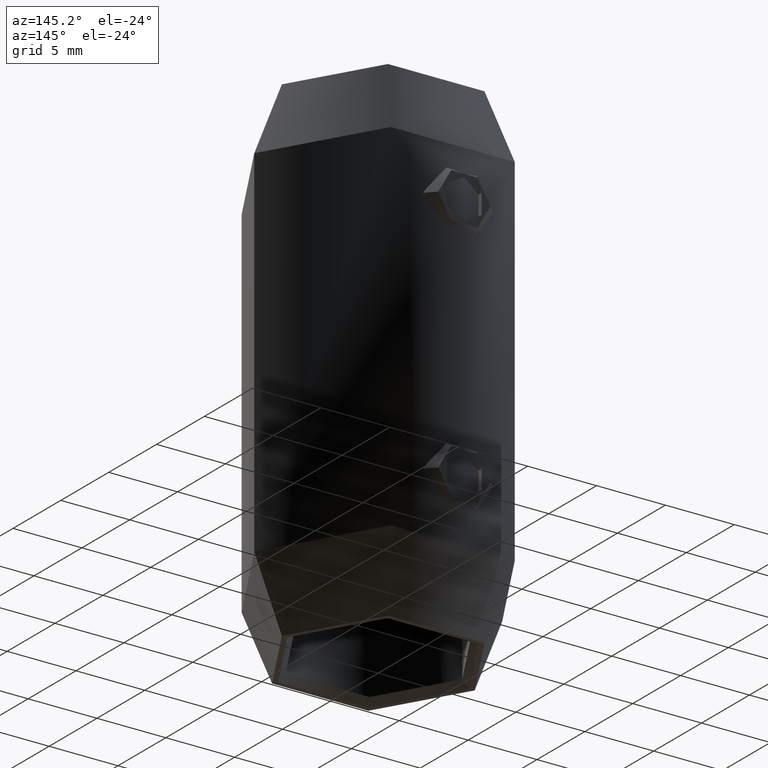
[diagram: clean part render]
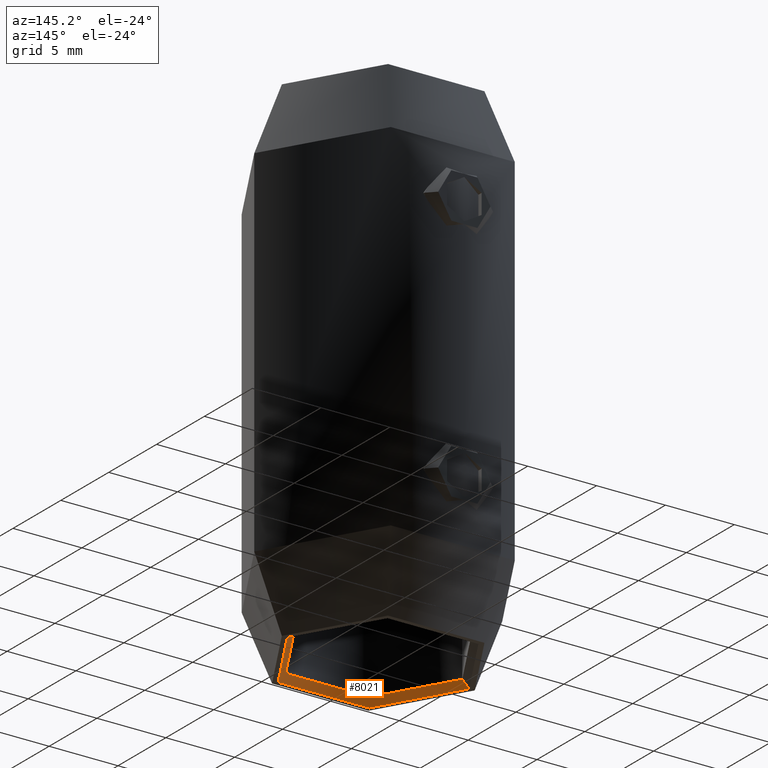
[diagram: same view with one face highlighted and labeled with its STEP entity id]
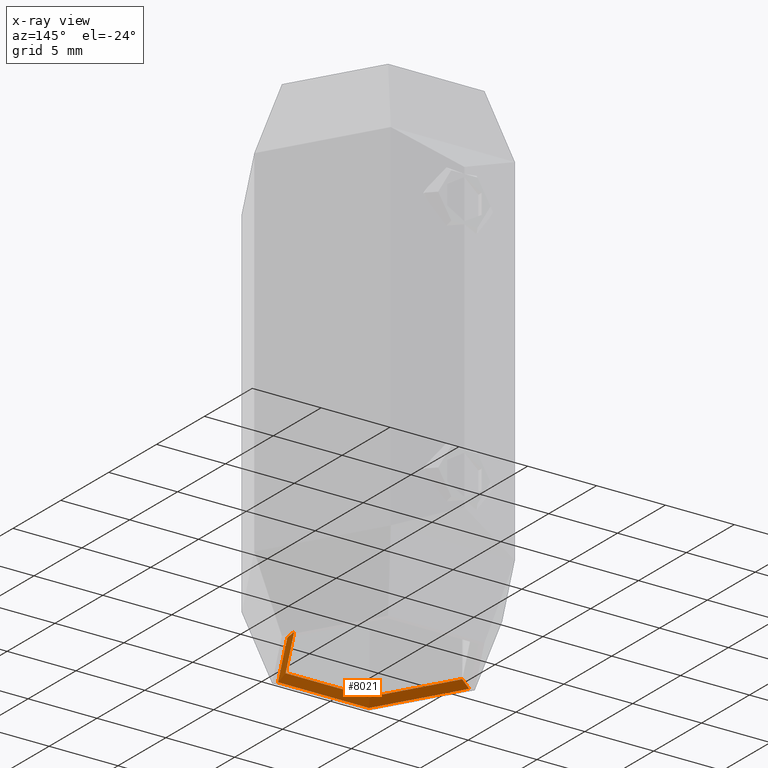
[diagram: x-ray of the same camera — body ghosted, the highlighted face saturated]
A machine part, auxiliary view. The second image highlights one B-rep face of the part: STEP entity #8021.
The next image is the same camera in x-ray: the body ghosted, the highlighted face saturated — about 0% of this face is hidden behind the body in this view.
In plain terms, the highlighted conical surface has half-angle 45 deg.
Its self-contained STEP definition (entity closure, byte-faithful):
#942 = ORIENTED_EDGE ( 'NONE', *, *, #13872, .F. ) ;
#1297 = CARTESIAN_POINT ( 'NONE',  ( 6.599999999999997868, 8.082668874372529047E-16, -18.00000000000000000 ) ) ;
#1986 = VERTEX_POINT ( 'NONE', #8018 ) ;
#2042 = DIRECTION ( 'NONE',  ( 1.000000000000000000, 0.000000000000000000, 0.000000000000000000 ) ) ;
#2516 = AXIS2_PLACEMENT_3D ( 'NONE', #10886, #8550, #2042 ) ;
#2681 = VECTOR ( 'NONE', #11091, 1000.000000000000000 ) ;
#3130 = CIRCLE ( 'NONE', #12473, 6.599999999999997868 ) ;
#3716 = DIRECTION ( 'NONE',  ( 1.000000000000000000, 0.000000000000000000, 0.000000000000000000 ) ) ;
#3784 = ORIENTED_EDGE ( 'NONE', *, *, #11855, .F. ) ;
#3930 = DIRECTION ( 'NONE',  ( 0.7071067811865414665, 8.659560562354857670E-17, -0.7071067811865536790 ) ) ;
#4207 = CARTESIAN_POINT ( 'NONE',  ( 6.599999999999997868, 8.082668874372529047E-16, -18.00000000000000000 ) ) ;
#4614 = VERTEX_POINT ( 'NONE', #4207 ) ;
#5449 = FACE_OUTER_BOUND ( 'NONE', #9106, .T. ) ;
#6042 = CIRCLE ( 'NONE', #2516, 6.099999999999999645 ) ;
#6058 = CARTESIAN_POINT ( 'NONE',  ( 0.000000000000000000, 0.000000000000000000, -18.00000000000000000 ) ) ;
#6456 = AXIS2_PLACEMENT_3D ( 'NONE', #15697, #10793, #10899 ) ;
#7147 = EDGE_CURVE ( 'NONE', #7341, #4614, #3130, .T. ) ;
#7310 = CARTESIAN_POINT ( 'NONE',  ( -6.599999999999997868, 0.000000000000000000, -18.00000000000000000 ) ) ;
#7341 = VERTEX_POINT ( 'NONE', #7310 ) ;
#7995 = LINE ( 'NONE', #1297, #13794 ) ;
#8018 = CARTESIAN_POINT ( 'NONE',  ( -6.099999999999999645, 7.470345474798854293E-16, -17.49999999999999289 ) ) ;
#8021 = ADVANCED_FACE ( 'NONE', ( #5449 ), #9564, .F. ) ;
#8550 = DIRECTION ( 'NONE',  ( -0.000000000000000000, -0.000000000000000000, -1.000000000000000000 ) ) ;
#8627 = DIRECTION ( 'NONE',  ( -0.000000000000000000, -0.000000000000000000, 1.000000000000000000 ) ) ;
#9106 = EDGE_LOOP ( 'NONE', ( #942, #15257, #11409, #3784 ) ) ;
#9564 = CONICAL_SURFACE ( 'NONE', #6456, 6.599999999999997868, 0.7853981633974396193 ) ;
#9719 = VERTEX_POINT ( 'NONE', #10014 ) ;
#10014 = CARTESIAN_POINT ( 'NONE',  ( 6.099999999999999645, 0.000000000000000000, -17.49999999999999289 ) ) ;
#10793 = DIRECTION ( 'NONE',  ( -0.000000000000000000, -0.000000000000000000, -1.000000000000000000 ) ) ;
#10886 = CARTESIAN_POINT ( 'NONE',  ( 0.000000000000000000, 0.000000000000000000, -17.49999999999999289 ) ) ;
#10899 = DIRECTION ( 'NONE',  ( -1.000000000000000000, 0.000000000000000000, 0.000000000000000000 ) ) ;
#11091 = DIRECTION ( 'NONE',  ( -0.7071067811865414665, 0.000000000000000000, -0.7071067811865536790 ) ) ;
#11409 = ORIENTED_EDGE ( 'NONE', *, *, #7147, .F. ) ;
#11855 = EDGE_CURVE ( 'NONE', #1986, #7341, #12604, .T. ) ;
#12473 = AXIS2_PLACEMENT_3D ( 'NONE', #6058, #8627, #3716 ) ;
#12604 = LINE ( 'NONE', #14750, #2681 ) ;
#13439 = EDGE_CURVE ( 'NONE', #9719, #4614, #7995, .T. ) ;
#13794 = VECTOR ( 'NONE', #3930, 1000.000000000000000 ) ;
#13872 = EDGE_CURVE ( 'NONE', #9719, #1986, #6042, .T. ) ;
#14750 = CARTESIAN_POINT ( 'NONE',  ( -6.599999999999997868, 0.000000000000000000, -18.00000000000000000 ) ) ;
#15257 = ORIENTED_EDGE ( 'NONE', *, *, #13439, .T. ) ;
#15697 = CARTESIAN_POINT ( 'NONE',  ( 0.000000000000000000, 0.000000000000000000, -18.00000000000000000 ) ) ;